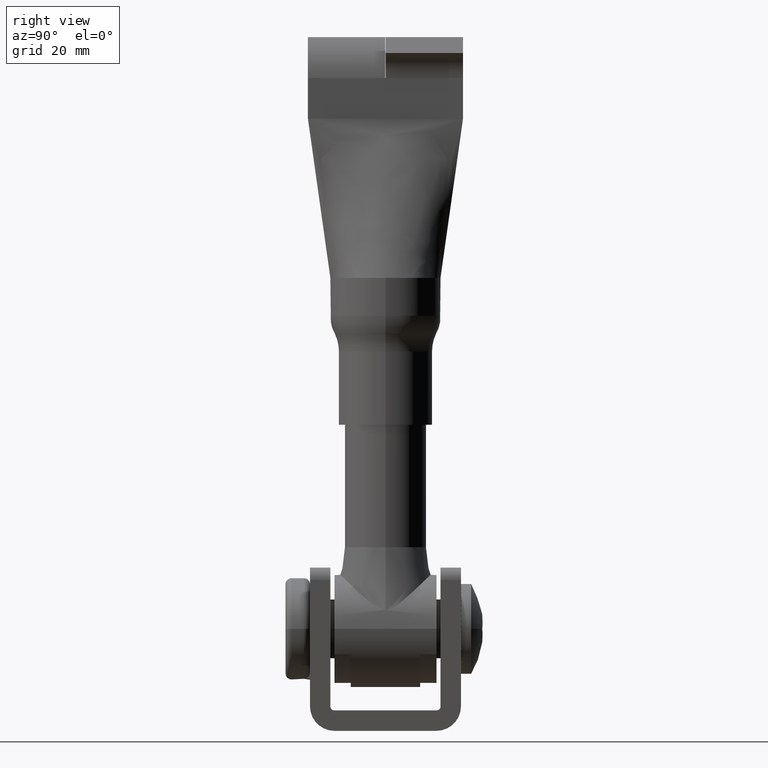
[diagram: clean part render]
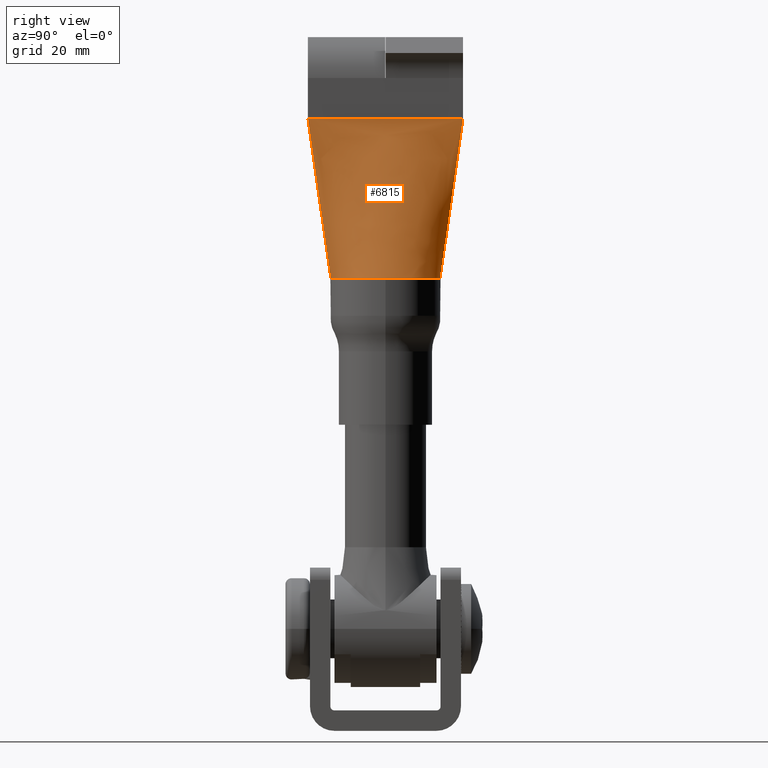
[diagram: same view with one face highlighted and labeled with its STEP entity id]
A machine part, right view. The second image highlights one B-rep face of the part: STEP entity #6815.
In plain terms, the highlighted face is a freeform B-spline surface patch.
Its self-contained STEP definition (entity closure, byte-faithful):
#8 = CIRCLE ( 'NONE', #5162, 13.50000000000000000 ) ;
#460 = CARTESIAN_POINT ( 'NONE',  ( 2.130567959856863000, -16.19231649491217300, 55.50000000000000000 ) ) ;
#472 = CARTESIAN_POINT ( 'NONE',  ( 2.509023198865763000, -19.06857631137982200, 75.47627806677046200 ) ) ;
#628 = CARTESIAN_POINT ( 'NONE',  ( 2.499999999999996400, -17.41666666666666800, 75.00000000000001400 ) ) ;
#717 = CARTESIAN_POINT ( 'NONE',  ( 2.457522591618198000, -13.47463191707886100, 75.47627806677046200 ) ) ;
#807 = CARTESIAN_POINT ( 'NONE',  ( 2.499999999999997800, -6.333333333333323300, 75.00000000000001400 ) ) ;
#891 = CARTESIAN_POINT ( 'NONE',  ( 11.86762345156344400, -6.503519841678710600, 36.00000000000000000 ) ) ;
#978 = CARTESIAN_POINT ( 'NONE',  ( 2.499999999999997800, -1.583333333333320800, 74.99999999999998600 ) ) ;
#1068 = CARTESIAN_POINT ( 'NONE',  ( 1.672667573900253400, 13.39627356164190200, 36.00000000000000000 ) ) ;
#1159 = CARTESIAN_POINT ( 'NONE',  ( 2.480551781824935600, 15.86940375079042000, 75.47627806677046200 ) ) ;
#1233 = CARTESIAN_POINT ( 'NONE',  ( 2.411411885741195200, 8.700254994273084500, 75.47627806677049000 ) ) ;
#1321 = CARTESIAN_POINT ( 'NONE',  ( 13.07279928926279000, 3.883753791603683100, 35.60999999999999200 ) ) ;
#1407 = CARTESIAN_POINT ( 'NONE',  ( 2.500000000000000000, 6.333333333333342800, 75.00000000000001400 ) ) ;
#1840 = CARTESIAN_POINT ( 'NONE',  ( 1.575041220367642500, 13.34945994146072200, 35.60999999999999200 ) ) ;
#1866 = VERTEX_POINT ( 'NONE', #10549 ) ;
#1900 = VERTEX_POINT ( 'NONE', #24739 ) ;
#2017 = VERTEX_POINT ( 'NONE', #23006 ) ;
#2328 = B_SPLINE_SURFACE_WITH_KNOTS ( 'NONE', 3, 1, ( 
 ( #16318, #24502, #4347, #6543 ),
 ( #20385, #22414, #12421, #2399 ),
 ( #16413, #4429, #18453, #6453 ),
 ( #22503, #10476, #12508, #472 ),
 ( #22586, #14501, #2480, #4518 ),
 ( #18529, #20562, #628, #2908 ),
 ( #10649, #15009, #20908, #8713 ),
 ( #6874, #6703, #24836, #8881 ),
 ( #22848, #24750, #16935, #717 ),
 ( #20726, #24670, #12756, #18957 ),
 ( #4687, #12843, #10828, #18699 ),
 ( #22933, #2735, #2648, #20994 ),
 ( #3001, #6961, #10926, #19056 ),
 ( #12666, #17021, #25016, #14739 ),
 ( #6790, #2818, #807, #14673 ),
 ( #16759, #891, #8625, #13010 ),
 ( #16667, #8975, #22663, #22756 ),
 ( #8795, #10734, #23023, #11012 ),
 ( #4777, #14827, #978, #18784 ),
 ( #20814, #16851, #4865, #18868 ),
 ( #5043, #20654, #24928, #12923 ),
 ( #14922, #4955, #19233, #23278 ),
 ( #1321, #19413, #15096, #21443 ),
 ( #23453, #25278, #9412, #13445 ),
 ( #7149, #23194, #21172, #13100 ),
 ( #9158, #23113, #1407, #7318 ),
 ( #7233, #19328, #19144, #11270 ),
 ( #13269, #5479, #15183, #1233 ),
 ( #17383, #3089, #5225, #11185 ),
 ( #3176, #25187, #7057, #15278 ),
 ( #3264, #11439, #25359, #15357 ),
 ( #7404, #15435, #21274, #5395 ),
 ( #3350, #17121, #9243, #17298 ),
 ( #25438, #13187, #3436, #1159 ),
 ( #17215, #17471, #21080, #5310 ),
 ( #21355, #9333, #11352, #9066 ),
 ( #23363, #5135, #11099, #13358 ),
 ( #25103, #1068, #7826, #17736 ),
 ( #1840, #7565, #9500, #21539 ),
 ( #23866, #23614, #3618, #3523 ) ),
 .UNSPECIFIED., .F., .F., .F.,
 ( 4, 3, 2, 2, 2, 2, 2, 2, 2, 2, 2, 2, 2, 2, 2, 2, 2, 3, 4 ),
 ( 2, 1, 1, 2 ),
 ( -0.01000000000000000000, 0.0000000000000000000, 0.06249999999999997200, 0.1250000000000000000, 0.1875000000000000300, 0.2500000000000000600, 0.3125000000000000600, 0.3750000000000001100, 0.4375000000000001100, 0.5000000000000001100, 0.5625000000000001100, 0.6250000000000000000, 0.6875000000000000000, 0.7500000000000000000, 0.8125000000000000000, 0.8749999999999998900, 0.9374999999999998900, 1.000000000000000000, 1.010000000000000000 ),
 ( -0.01000000000000000000, 0.0000000000000000000, 1.000000000000000000, 1.012212258122319400 ),
 .UNSPECIFIED. ) ;
#2399 = CARTESIAN_POINT ( 'NONE',  ( 2.511183995415220000, -19.32471910143535600, 75.47627806677046200 ) ) ;
#2480 = CARTESIAN_POINT ( 'NONE',  ( 2.499999999999996400, -18.20833333333333200, 75.00000000000001400 ) ) ;
#2648 = CARTESIAN_POINT ( 'NONE',  ( 2.499999999999996900, -10.29166666666665900, 75.00000000000001400 ) ) ;
#2735 = CARTESIAN_POINT ( 'NONE',  ( 8.536583567296171200, -10.49102263281905100, 36.00000000000002800 ) ) ;
#2742 = DIRECTION ( 'NONE',  ( 0.0000000000000000000, 0.0000000000000000000, 1.000000000000000000 ) ) ;
#2818 = CARTESIAN_POINT ( 'NONE',  ( 11.39301603597880000, -7.296706702869070000, 36.00000000000002800 ) ) ;
#2908 = CARTESIAN_POINT ( 'NONE',  ( 2.495202280975656400, -17.46814921799465700, 75.47627806677046200 ) ) ;
#3001 = CARTESIAN_POINT ( 'NONE',  ( 9.826572572018317700, -9.376442569900216700, 35.60999999999999200 ) ) ;
#3034 = CARTESIAN_POINT ( 'NONE',  ( 2.130567959856866500, 16.19231649491217000, 55.50000000000000000 ) ) ;
#3089 = CARTESIAN_POINT ( 'NONE',  ( 8.536583567296171200, 10.49102263281905000, 36.00000000000001400 ) ) ;
#3176 = CARTESIAN_POINT ( 'NONE',  ( 7.955349001749656400, 10.97133506281424400, 35.61000000000002100 ) ) ;
#3264 = CARTESIAN_POINT ( 'NONE',  ( 6.663376393831210700, 11.77988815682195800, 35.60999999999999200 ) ) ;
#3274 = VECTOR ( 'NONE', #4894, 1000.000000000000200 ) ;
#3350 = CARTESIAN_POINT ( 'NONE',  ( 4.735606889802664200, 12.64542937017763300, 35.60999999999999200 ) ) ;
#3436 = CARTESIAN_POINT ( 'NONE',  ( 2.500000000000000400, 15.83333333333333400, 75.00000000000001400 ) ) ;
#3523 = CARTESIAN_POINT ( 'NONE',  ( 2.512264393689953600, 19.45279049646312300, 75.47627806677046200 ) ) ;
#3618 = CARTESIAN_POINT ( 'NONE',  ( 2.500000000000000900, 19.38000000000000300, 75.00000000000001400 ) ) ;
#3888 = CARTESIAN_POINT ( 'NONE',  ( 0.0000000000000000000, 0.0000000000000000000, 36.00000000000000000 ) ) ;
#4347 = CARTESIAN_POINT ( 'NONE',  ( 2.499999999999996400, -19.38000000000000300, 75.00000000000001400 ) ) ;
#4429 = CARTESIAN_POINT ( 'NONE',  ( 1.672667573900250800, -13.39627356164190400, 36.00000000000000000 ) ) ;
#4518 = CARTESIAN_POINT ( 'NONE',  ( 2.502270709648707600, -18.26813009245628200, 75.47627806677046200 ) ) ;
#4687 = CARTESIAN_POINT ( 'NONE',  ( 7.955349001749661800, -10.97133506281424600, 35.61000000000002100 ) ) ;
#4777 = CARTESIAN_POINT ( 'NONE',  ( 13.49948293584366100, -1.976959908558209500, 35.60999999999999200 ) ) ;
#4865 = CARTESIAN_POINT ( 'NONE',  ( 2.499999999999997800, -0.7916666666666556400, 75.00000000000001400 ) ) ;
#4894 = DIRECTION ( 'NONE',  ( -0.01874855852282891100, -0.1424890447735001600, -0.9896187971501204700 ) ) ;
#4955 = CARTESIAN_POINT ( 'NONE',  ( 13.39057716420164300, 1.973062615734199500, 36.00000000000000000 ) ) ;
#5043 = CARTESIAN_POINT ( 'NONE',  ( 13.61000000000000500, 0.9886205055789750700, 35.61000000000000700 ) ) ;
#5135 = CARTESIAN_POINT ( 'NONE',  ( 1.761135919713732200, 13.38463298982434000, 36.00000000000000000 ) ) ;
#5162 = AXIS2_PLACEMENT_3D ( 'NONE', #3888, #9864, #23881 ) ;
#5225 = CARTESIAN_POINT ( 'NONE',  ( 2.500000000000000400, 10.29166666666667500, 75.00000000000001400 ) ) ;
#5270 = VERTEX_POINT ( 'NONE', #11920 ) ;
#5310 = CARTESIAN_POINT ( 'NONE',  ( 2.495202280975660400, 17.46814921799465400, 75.47627806677046200 ) ) ;
#5395 = CARTESIAN_POINT ( 'NONE',  ( 2.457522591618201500, 13.47463191707887200, 75.47627806677049000 ) ) ;
#5479 = CARTESIAN_POINT ( 'NONE',  ( 9.754032249523088900, 9.369827626963907400, 36.00000000000001400 ) ) ;
#6453 = CARTESIAN_POINT ( 'NONE',  ( 2.510103597140491200, -19.19664770640758900, 75.47627806677046200 ) ) ;
#6543 = CARTESIAN_POINT ( 'NONE',  ( 2.512264393689948700, -19.45279049646312300, 75.47627806677046200 ) ) ;
#6579 = DIRECTION ( 'NONE',  ( -1.141265444721583800E-016, -1.000000000000000000, 0.0000000000000000000 ) ) ;
#6703 = CARTESIAN_POINT ( 'NONE',  ( 4.713472168121447800, -12.66915449192504900, 36.00000000000001400 ) ) ;
#6790 = CARTESIAN_POINT ( 'NONE',  ( 11.48194619633858700, -7.306340436564427800, 35.61000000000002100 ) ) ;
#6815 = ADVANCED_FACE ( 'NONE', ( #19112 ), #2328, .T. ) ;
#6874 = CARTESIAN_POINT ( 'NONE',  ( 4.735606889802662400, -12.64542937017763300, 35.61000000000000700 ) ) ;
#6961 = CARTESIAN_POINT ( 'NONE',  ( 9.754032249523085300, -9.369827626963910900, 36.00000000000000000 ) ) ;
#7057 = CARTESIAN_POINT ( 'NONE',  ( 2.500000000000000400, 11.08333333333334100, 75.00000000000001400 ) ) ;
#7149 = CARTESIAN_POINT ( 'NONE',  ( 11.96129968607908200, 6.513138373428828000, 35.61000000000000700 ) ) ;
#7233 = CARTESIAN_POINT ( 'NONE',  ( 10.41438548326907900, 8.737926560234187800, 35.60999999999999200 ) ) ;
#7318 = CARTESIAN_POINT ( 'NONE',  ( 2.391396192682701200, 6.321568369076403300, 75.47627806677049000 ) ) ;
#7404 = CARTESIAN_POINT ( 'NONE',  ( 6.013042554120897200, 12.11037872755055000, 35.60999999999999200 ) ) ;
#7565 = CARTESIAN_POINT ( 'NONE',  ( 1.584199228086774700, 13.40791413345946400, 36.00000000000000000 ) ) ;
#7826 = CARTESIAN_POINT ( 'NONE',  ( 2.500000000000000900, 19.12666666666666500, 75.00000000000001400 ) ) ;
#8625 = CARTESIAN_POINT ( 'NONE',  ( 2.499999999999997800, -5.541666666666655400, 75.00000000000001400 ) ) ;
#8713 = CARTESIAN_POINT ( 'NONE',  ( 2.480551781824931600, -15.86940375079041700, 75.47627806677046200 ) ) ;
#8795 = CARTESIAN_POINT ( 'NONE',  ( 13.07279928926279300, -3.883753791603685700, 35.60999999999999200 ) ) ;
#8881 = CARTESIAN_POINT ( 'NONE',  ( 2.472968506536327800, -15.07064039774295400, 75.47627806677046200 ) ) ;
#8975 = CARTESIAN_POINT ( 'NONE',  ( 12.65540720196998800, -4.793425212886246500, 36.00000000000002800 ) ) ;
#9066 = CARTESIAN_POINT ( 'NONE',  ( 2.502270709648711100, 18.26813009245628200, 75.47627806677046200 ) ) ;
#9158 = CARTESIAN_POINT ( 'NONE',  ( 11.48194619633858500, 7.306340436564426900, 35.60999999999999200 ) ) ;
#9243 = CARTESIAN_POINT ( 'NONE',  ( 2.500000000000000400, 15.04166666666666800, 75.00000000000001400 ) ) ;
#9333 = CARTESIAN_POINT ( 'NONE',  ( 2.314063081047974500, 13.31187941596457600, 36.00000000000001400 ) ) ;
#9412 = CARTESIAN_POINT ( 'NONE',  ( 2.499999999999999100, 3.958333333333343300, 75.00000000000001400 ) ) ;
#9487 = LINE ( 'NONE', #14542, #19198 ) ;
#9500 = CARTESIAN_POINT ( 'NONE',  ( 2.500000000000000900, 19.25333333333333400, 75.00000000000001400 ) ) ;
#9864 = DIRECTION ( 'NONE',  ( 0.0000000000000000000, 0.0000000000000000000, 1.000000000000000000 ) ) ;
#10476 = CARTESIAN_POINT ( 'NONE',  ( 1.761135919713729300, -13.38463298982434100, 36.00000000000000000 ) ) ;
#10549 = CARTESIAN_POINT ( 'NONE',  ( 2.499999999999996400, -19.00000000000000000, 75.00000000000001400 ) ) ;
#10649 = CARTESIAN_POINT ( 'NONE',  ( 4.108441302179472600, -12.85017319482678000, 35.61000000000000700 ) ) ;
#10659 = LINE ( 'NONE', #460, #12261 ) ;
#10672 = EDGE_LOOP ( 'NONE', ( #22458, #25664, #19959, #19656, #19108 ) ) ;
#10734 = CARTESIAN_POINT ( 'NONE',  ( 12.96811810818098500, -3.876653919079556600, 36.00000000000000000 ) ) ;
#10828 = CARTESIAN_POINT ( 'NONE',  ( 2.499999999999996900, -11.08333333333332500, 75.00000000000001400 ) ) ;
#10926 = CARTESIAN_POINT ( 'NONE',  ( 2.499999999999996900, -8.708333333333325000, 75.00000000000001400 ) ) ;
#11012 = CARTESIAN_POINT ( 'NONE',  ( 2.372160639607965700, -3.157996119076630600, 75.47627806677046200 ) ) ;
#11099 = CARTESIAN_POINT ( 'NONE',  ( 2.500000000000000900, 19.00000000000000000, 75.00000000000001400 ) ) ;
#11185 = CARTESIAN_POINT ( 'NONE',  ( 2.426279683299227900, 10.28923208014979600, 75.47627806677049000 ) ) ;
#11270 = CARTESIAN_POINT ( 'NONE',  ( 2.404304437226515700, 7.906736530225335200, 75.47627806677049000 ) ) ;
#11352 = CARTESIAN_POINT ( 'NONE',  ( 2.500000000000000400, 18.20833333333333200, 75.00000000000001400 ) ) ;
#11439 = CARTESIAN_POINT ( 'NONE',  ( 6.622154845377436600, 11.78866814206794400, 36.00000000000000000 ) ) ;
#11920 = CARTESIAN_POINT ( 'NONE',  ( 1.761143528652265200, -13.38469061141342700, 36.00000000000000000 ) ) ;
#12261 = VECTOR ( 'NONE', #21882, 1000.000000000000100 ) ;
#12421 = CARTESIAN_POINT ( 'NONE',  ( 2.499999999999996400, -19.25333333333333400, 75.00000000000001400 ) ) ;
#12499 = EDGE_CURVE ( 'NONE', #2017, #12949, #15193, .T. ) ;
#12508 = CARTESIAN_POINT ( 'NONE',  ( 2.499999999999996400, -19.00000000000000000, 75.00000000000001400 ) ) ;
#12666 = CARTESIAN_POINT ( 'NONE',  ( 10.41438548326907900, -8.737926560234189600, 35.60999999999999200 ) ) ;
#12756 = CARTESIAN_POINT ( 'NONE',  ( 2.499999999999996900, -12.66666666666666100, 75.00000000000001400 ) ) ;
#12843 = CARTESIAN_POINT ( 'NONE',  ( 7.901335645296695600, -10.97244395658176200, 36.00000000000002800 ) ) ;
#12923 = CARTESIAN_POINT ( 'NONE',  ( 2.365665160654484700, 0.7892852299152132200, 75.47627806677046200 ) ) ;
#12949 = VERTEX_POINT ( 'NONE', #20995 ) ;
#13010 = CARTESIAN_POINT ( 'NONE',  ( 2.385600164416812300, -5.529920267417635300, 75.47627806677046200 ) ) ;
#13100 = CARTESIAN_POINT ( 'NONE',  ( 2.385600164416814100, 5.529920267417656600, 75.47627806677049000 ) ) ;
#13187 = CARTESIAN_POINT ( 'NONE',  ( 4.092516140771758500, 12.87970943382189200, 36.00000000000000000 ) ) ;
#13269 = CARTESIAN_POINT ( 'NONE',  ( 9.826572572018319500, 9.376442569900213200, 35.61000000000000700 ) ) ;
#13358 = CARTESIAN_POINT ( 'NONE',  ( 2.509023198865767000, 19.06857631137982200, 75.47627806677046200 ) ) ;
#13445 = CARTESIAN_POINT ( 'NONE',  ( 2.375979545912279900, 3.948134975744390700, 75.47627806677049000 ) ) ;
#14501 = CARTESIAN_POINT ( 'NONE',  ( 2.314063081047970100, -13.31187941596457400, 36.00000000000000000 ) ) ;
#14542 = CARTESIAN_POINT ( 'NONE',  ( 2.500000000000000900, 19.00000000000000000, 75.00000000000001400 ) ) ;
#14673 = CARTESIAN_POINT ( 'NONE',  ( 2.391396192682699000, -6.321568369076384600, 75.47627806677046200 ) ) ;
#14739 = CARTESIAN_POINT ( 'NONE',  ( 2.404304437226512500, -7.906736530225315600, 75.47627806677046200 ) ) ;
#14827 = CARTESIAN_POINT ( 'NONE',  ( 13.39057716420164500, -1.973062615734200800, 36.00000000000000000 ) ) ;
#14922 = CARTESIAN_POINT ( 'NONE',  ( 13.49948293584365900, 1.976959908558208100, 35.60999999999999200 ) ) ;
#15009 = CARTESIAN_POINT ( 'NONE',  ( 4.092516140771755000, -12.87970943382189400, 36.00000000000001400 ) ) ;
#15096 = CARTESIAN_POINT ( 'NONE',  ( 2.499999999999998700, 3.166666666666678100, 75.00000000000001400 ) ) ;
#15183 = CARTESIAN_POINT ( 'NONE',  ( 2.500000000000000400, 8.708333333333342800, 75.00000000000001400 ) ) ;
#15193 = LINE ( 'NONE', #3034, #3274 ) ;
#15278 = CARTESIAN_POINT ( 'NONE',  ( 2.434037494894352600, 11.08468754302525400, 75.47627806677049000 ) ) ;
#15357 = CARTESIAN_POINT ( 'NONE',  ( 2.449659181008081400, 12.67738901128009000, 75.47627806677049000 ) ) ;
#15435 = CARTESIAN_POINT ( 'NONE',  ( 5.978259954575145600, 12.12372481275632200, 36.00000000000000000 ) ) ;
#16318 = CARTESIAN_POINT ( 'NONE',  ( 1.485688191096026200, -13.35995025232979900, 35.60999999999999200 ) ) ;
#16413 = CARTESIAN_POINT ( 'NONE',  ( 1.664394249639253200, -13.33896963059165600, 35.60999999999999200 ) ) ;
#16503 = AXIS2_PLACEMENT_3D ( 'NONE', #16858, #2742, #16768 ) ;
#16667 = CARTESIAN_POINT ( 'NONE',  ( 12.75696127398968800, -4.801776131681775100, 35.61000000000002100 ) ) ;
#16759 = CARTESIAN_POINT ( 'NONE',  ( 11.96129968607907800, -6.513138373428831500, 35.60999999999999200 ) ) ;
#16768 = DIRECTION ( 'NONE',  ( 1.000000000000000000, 0.0000000000000000000, 0.0000000000000000000 ) ) ;
#16849 = CIRCLE ( 'NONE', #16503, 13.50000000000000000 ) ;
#16851 = CARTESIAN_POINT ( 'NONE',  ( 13.49999999999999800, -0.9866704675699420300, 36.00000000000001400 ) ) ;
#16858 = CARTESIAN_POINT ( 'NONE',  ( 0.0000000000000000000, 0.0000000000000000000, 36.00000000000000000 ) ) ;
#16935 = CARTESIAN_POINT ( 'NONE',  ( 2.499999999999996900, -13.45833333333332900, 75.00000000000001400 ) ) ;
#17021 = CARTESIAN_POINT ( 'NONE',  ( 10.33602523095948400, -8.729795274159263500, 36.00000000000000000 ) ) ;
#17121 = CARTESIAN_POINT ( 'NONE',  ( 4.713472168121449500, 12.66915449192504900, 36.00000000000000000 ) ) ;
#17215 = CARTESIAN_POINT ( 'NONE',  ( 2.896789534420935100, 13.15886468439133900, 35.61000000000000700 ) ) ;
#17298 = CARTESIAN_POINT ( 'NONE',  ( 2.472968506536331400, 15.07064039774295800, 75.47627806677046200 ) ) ;
#17352 = EDGE_CURVE ( 'NONE', #5270, #1866, #10659, .T. ) ;
#17383 = CARTESIAN_POINT ( 'NONE',  ( 8.596949402969132200, 10.49301619248057400, 35.61000000000000700 ) ) ;
#17471 = CARTESIAN_POINT ( 'NONE',  ( 2.892860925169243200, 13.20102113966139300, 36.00000000000001400 ) ) ;
#17736 = CARTESIAN_POINT ( 'NONE',  ( 2.510103597140496100, 19.19664770640758900, 75.47627806677046200 ) ) ;
#18453 = CARTESIAN_POINT ( 'NONE',  ( 2.499999999999996400, -19.12666666666666500, 75.00000000000001400 ) ) ;
#18471 = EDGE_CURVE ( 'NONE', #2017, #1866, #9487, .T. ) ;
#18529 = CARTESIAN_POINT ( 'NONE',  ( 2.896789534420932900, -13.15886468439133900, 35.60999999999999200 ) ) ;
#18699 = CARTESIAN_POINT ( 'NONE',  ( 2.434037494894349100, -11.08468754302523800, 75.47627806677046200 ) ) ;
#18784 = CARTESIAN_POINT ( 'NONE',  ( 2.367001460569730000, -1.578573858738815200, 75.47627806677046200 ) ) ;
#18868 = CARTESIAN_POINT ( 'NONE',  ( 2.365665160654484300, -0.7892852299151913400, 75.47627806677046200 ) ) ;
#18957 = CARTESIAN_POINT ( 'NONE',  ( 2.449659181008078300, -12.67738901128007700, 75.47627806677046200 ) ) ;
#19021 = EDGE_CURVE ( 'NONE', #5270, #1900, #8, .T. ) ;
#19056 = CARTESIAN_POINT ( 'NONE',  ( 2.411411885741191700, -8.700254994273068500, 75.47627806677046200 ) ) ;
#19108 = ORIENTED_EDGE ( 'NONE', *, *, #17352, .F. ) ;
#19112 = FACE_OUTER_BOUND ( 'NONE', #10672, .T. ) ;
#19144 = CARTESIAN_POINT ( 'NONE',  ( 2.500000000000000400, 7.916666666666675800, 75.00000000000001400 ) ) ;
#19198 = VECTOR ( 'NONE', #6579, 1000.000000000000000 ) ;
#19233 = CARTESIAN_POINT ( 'NONE',  ( 2.499999999999998700, 1.583333333333345200, 75.00000000000001400 ) ) ;
#19328 = CARTESIAN_POINT ( 'NONE',  ( 10.33602523095948400, 8.729795274159261700, 36.00000000000000000 ) ) ;
#19413 = CARTESIAN_POINT ( 'NONE',  ( 12.96811810818098100, 3.876653919079553900, 36.00000000000000000 ) ) ;
#19656 = ORIENTED_EDGE ( 'NONE', *, *, #18471, .T. ) ;
#19959 = ORIENTED_EDGE ( 'NONE', *, *, #12499, .F. ) ;
#20385 = CARTESIAN_POINT ( 'NONE',  ( 1.575041220367639600, -13.34945994146072800, 35.60999999999999200 ) ) ;
#20562 = CARTESIAN_POINT ( 'NONE',  ( 2.892860925169240500, -13.20102113966139300, 36.00000000000000000 ) ) ;
#20654 = CARTESIAN_POINT ( 'NONE',  ( 13.50000000000000400, 0.9866704675699424800, 36.00000000000001400 ) ) ;
#20726 = CARTESIAN_POINT ( 'NONE',  ( 6.663376393831208900, -11.77988815682196100, 35.61000000000002100 ) ) ;
#20814 = CARTESIAN_POINT ( 'NONE',  ( 13.60999999999999900, -0.9886205055789748500, 35.61000000000000700 ) ) ;
#20908 = CARTESIAN_POINT ( 'NONE',  ( 2.499999999999996400, -15.83333333333333000, 75.00000000000001400 ) ) ;
#20994 = CARTESIAN_POINT ( 'NONE',  ( 2.426279683299224400, -10.28923208014978200, 75.47627806677046200 ) ) ;
#20995 = CARTESIAN_POINT ( 'NONE',  ( 1.761144577778942300, 13.38469859784188300, 36.00000000000000000 ) ) ;
#21080 = CARTESIAN_POINT ( 'NONE',  ( 2.500000000000000400, 17.41666666666666400, 75.00000000000001400 ) ) ;
#21172 = CARTESIAN_POINT ( 'NONE',  ( 2.499999999999999600, 5.541666666666675800, 75.00000000000001400 ) ) ;
#21274 = CARTESIAN_POINT ( 'NONE',  ( 2.500000000000000400, 13.45833333333333700, 75.00000000000001400 ) ) ;
#21355 = CARTESIAN_POINT ( 'NONE',  ( 2.312203711858454200, 13.26291487679088900, 35.61000000000000700 ) ) ;
#21443 = CARTESIAN_POINT ( 'NONE',  ( 2.372160639607966600, 3.157996119076655500, 75.47627806677046200 ) ) ;
#21539 = CARTESIAN_POINT ( 'NONE',  ( 2.511183995415224900, 19.32471910143535600, 75.47627806677046200 ) ) ;
#21882 = DIRECTION ( 'NONE',  ( 0.01874855852282889000, -0.1424890447735001300, 0.9896187971501205800 ) ) ;
#22414 = CARTESIAN_POINT ( 'NONE',  ( 1.584199228086772300, -13.40791413345946600, 36.00000000000000000 ) ) ;
#22458 = ORIENTED_EDGE ( 'NONE', *, *, #19021, .T. ) ;
#22503 = CARTESIAN_POINT ( 'NONE',  ( 1.753747278910866600, -13.32847931972258400, 35.60999999999999200 ) ) ;
#22586 = CARTESIAN_POINT ( 'NONE',  ( 2.312203711858449800, -13.26291487679088700, 35.60999999999999200 ) ) ;
#22663 = CARTESIAN_POINT ( 'NONE',  ( 2.499999999999997800, -3.958333333333320600, 74.99999999999998600 ) ) ;
#22756 = CARTESIAN_POINT ( 'NONE',  ( 2.375979545912278600, -3.948134975744367100, 75.47627806677046200 ) ) ;
#22848 = CARTESIAN_POINT ( 'NONE',  ( 6.013042554120896300, -12.11037872755055000, 35.60999999999999200 ) ) ;
#22933 = CARTESIAN_POINT ( 'NONE',  ( 8.596949402969132200, -10.49301619248057600, 35.61000000000002100 ) ) ;
#23006 = CARTESIAN_POINT ( 'NONE',  ( 2.500000000000000900, 19.00000000000000000, 74.99999999999998600 ) ) ;
#23020 = EDGE_CURVE ( 'NONE', #1900, #12949, #16849, .T. ) ;
#23023 = CARTESIAN_POINT ( 'NONE',  ( 2.499999999999997800, -3.166666666666653600, 74.99999999999998600 ) ) ;
#23113 = CARTESIAN_POINT ( 'NONE',  ( 11.39301603597879800, 7.296706702869069100, 36.00000000000000000 ) ) ;
#23194 = CARTESIAN_POINT ( 'NONE',  ( 11.86762345156344600, 6.503519841678707900, 36.00000000000001400 ) ) ;
#23278 = CARTESIAN_POINT ( 'NONE',  ( 2.367001460569730900, 1.578573858738839600, 75.47627806677046200 ) ) ;
#23363 = CARTESIAN_POINT ( 'NONE',  ( 1.753747278910869500, 13.32847931972258200, 35.60999999999999200 ) ) ;
#23453 = CARTESIAN_POINT ( 'NONE',  ( 12.75696127398968300, 4.801776131681773300, 35.60999999999999200 ) ) ;
#23614 = CARTESIAN_POINT ( 'NONE',  ( 1.495730882273296000, 13.41955470527702600, 36.00000000000000000 ) ) ;
#23866 = CARTESIAN_POINT ( 'NONE',  ( 1.485688191096028900, 13.35995025232979400, 35.60999999999999200 ) ) ;
#23881 = DIRECTION ( 'NONE',  ( 1.000000000000000000, 0.0000000000000000000, 0.0000000000000000000 ) ) ;
#24502 = CARTESIAN_POINT ( 'NONE',  ( 1.495730882273293800, -13.41955470527702800, 36.00000000000000000 ) ) ;
#24670 = CARTESIAN_POINT ( 'NONE',  ( 6.622154845377434800, -11.78866814206795000, 36.00000000000002800 ) ) ;
#24739 = CARTESIAN_POINT ( 'NONE',  ( 13.50000000000000200, -1.684983764617499400E-015, 36.00000000000000700 ) ) ;
#24750 = CARTESIAN_POINT ( 'NONE',  ( 5.978259954575145600, -12.12372481275632200, 36.00000000000000000 ) ) ;
#24836 = CARTESIAN_POINT ( 'NONE',  ( 2.499999999999996900, -15.04166666666666400, 75.00000000000001400 ) ) ;
#24928 = CARTESIAN_POINT ( 'NONE',  ( 2.499999999999998200, 0.7916666666666772900, 74.99999999999998600 ) ) ;
#25016 = CARTESIAN_POINT ( 'NONE',  ( 2.499999999999997300, -7.916666666666659000, 75.00000000000001400 ) ) ;
#25103 = CARTESIAN_POINT ( 'NONE',  ( 1.664394249639255900, 13.33896963059165200, 35.60999999999999200 ) ) ;
#25187 = CARTESIAN_POINT ( 'NONE',  ( 7.901335645296690300, 10.97244395658176000, 36.00000000000002800 ) ) ;
#25278 = CARTESIAN_POINT ( 'NONE',  ( 12.65540720196998200, 4.793425212886243800, 36.00000000000000000 ) ) ;
#25359 = CARTESIAN_POINT ( 'NONE',  ( 2.500000000000000400, 12.66666666666667300, 75.00000000000001400 ) ) ;
#25438 = CARTESIAN_POINT ( 'NONE',  ( 4.108441302179477000, 12.85017319482677900, 35.60999999999999200 ) ) ;
#25664 = ORIENTED_EDGE ( 'NONE', *, *, #23020, .T. ) ;